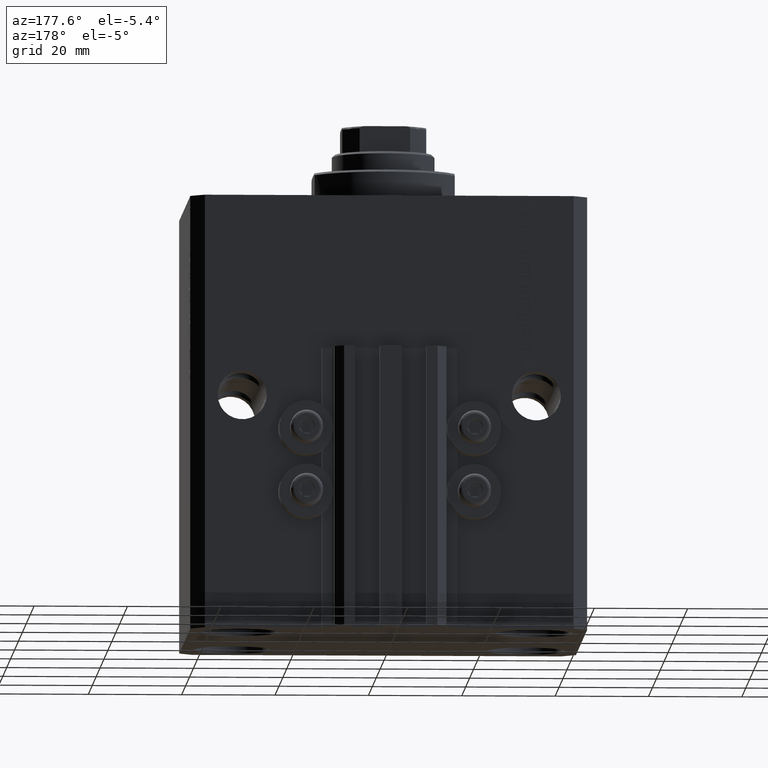
[diagram: clean part render]
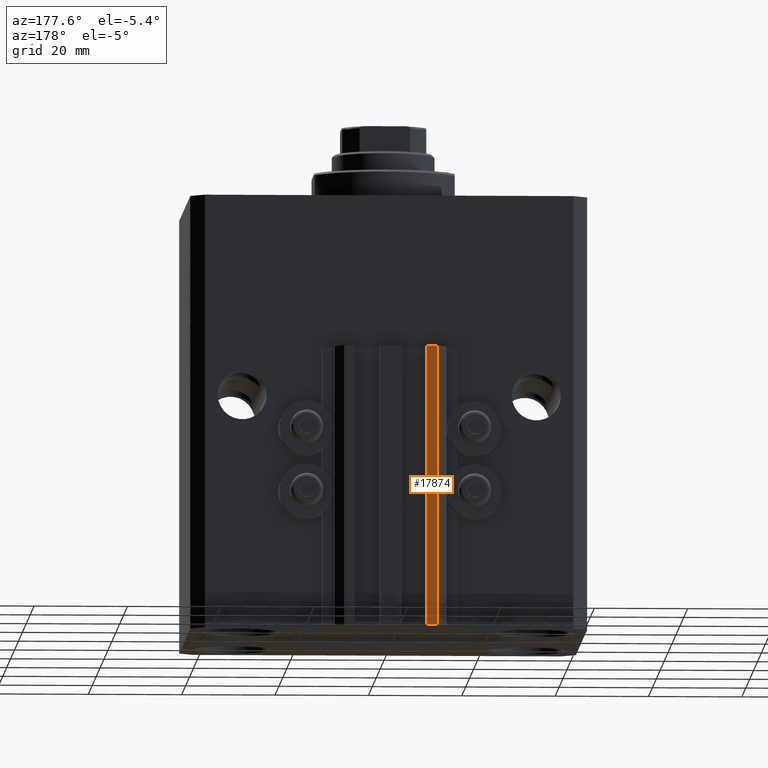
[diagram: same view with one face highlighted and labeled with its STEP entity id]
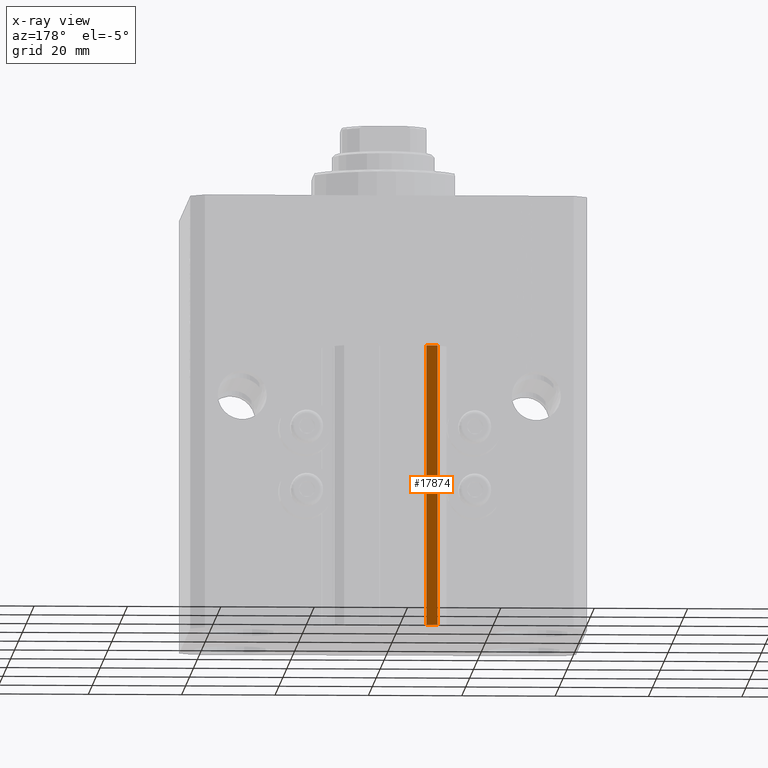
[diagram: x-ray of the same camera — body ghosted, the highlighted face saturated]
A machine part, auxiliary view. The second image highlights one B-rep face of the part: STEP entity #17874.
The next image is the same camera in x-ray: the body ghosted, the highlighted face saturated — about 0% of this face is hidden behind the body in this view.
In plain terms, the highlighted planar face has unit normal (0, 1, 0).
Its self-contained STEP definition (entity closure, byte-faithful):
#1281 = DIRECTION ( 'NONE',  ( -1.000000000000000000, 0.000000000000000000, 0.000000000000000000 ) ) ;
#1428 = EDGE_LOOP ( 'NONE', ( #29998, #13426, #5988, #23992 ) ) ;
#3418 = EDGE_CURVE ( 'NONE', #13104, #5903, #15937, .T. ) ;
#3806 = LINE ( 'NONE', #29783, #8318 ) ;
#3830 = EDGE_CURVE ( 'NONE', #13104, #14422, #3806, .T. ) ;
#4759 = LINE ( 'NONE', #19458, #20276 ) ;
#5903 = VERTEX_POINT ( 'NONE', #19776 ) ;
#5988 = ORIENTED_EDGE ( 'NONE', *, *, #3418, .T. ) ;
#8318 = VECTOR ( 'NONE', #18491, 1000.000000000000000 ) ;
#9155 = EDGE_CURVE ( 'NONE', #14422, #33744, #30393, .T. ) ;
#10253 = CARTESIAN_POINT ( 'NONE',  ( -7.650000000000002132, 39.49999999999999289, -93.00000000000000000 ) ) ;
#11507 = DIRECTION ( 'NONE',  ( 0.000000000000000000, 0.000000000000000000, 1.000000000000000000 ) ) ;
#12169 = VECTOR ( 'NONE', #34454, 1000.000000000000000 ) ;
#12463 = EDGE_CURVE ( 'NONE', #5903, #33744, #4759, .T. ) ;
#13104 = VERTEX_POINT ( 'NONE', #29718 ) ;
#13426 = ORIENTED_EDGE ( 'NONE', *, *, #3830, .F. ) ;
#13871 = DIRECTION ( 'NONE',  ( 0.000000000000000000, 0.000000000000000000, 1.000000000000000000 ) ) ;
#14422 = VERTEX_POINT ( 'NONE', #28430 ) ;
#15937 = LINE ( 'NONE', #45284, #12169 ) ;
#17874 = ADVANCED_FACE ( 'NONE', ( #35277 ), #46826, .T. ) ;
#18491 = DIRECTION ( 'NONE',  ( 0.000000000000000000, 0.000000000000000000, 1.000000000000000000 ) ) ;
#19458 = CARTESIAN_POINT ( 'NONE',  ( -10.00000000000000000, 39.49999999999999289, -93.00000000000000000 ) ) ;
#19776 = CARTESIAN_POINT ( 'NONE',  ( -10.00000000000000000, 39.49999999999999289, -93.00000000000000000 ) ) ;
#20276 = VECTOR ( 'NONE', #11507, 1000.000000000000000 ) ;
#23992 = ORIENTED_EDGE ( 'NONE', *, *, #12463, .T. ) ;
#28430 = CARTESIAN_POINT ( 'NONE',  ( -7.650000000000002132, 39.49999999999999289, -33.00000000000000000 ) ) ;
#29687 = CARTESIAN_POINT ( 'NONE',  ( -7.650000000000002132, 39.49999999999999289, -33.00000000000000000 ) ) ;
#29718 = CARTESIAN_POINT ( 'NONE',  ( -7.650000000000002132, 39.49999999999999289, -93.00000000000000000 ) ) ;
#29783 = CARTESIAN_POINT ( 'NONE',  ( -7.650000000000002132, 39.49999999999999289, -93.00000000000000000 ) ) ;
#29998 = ORIENTED_EDGE ( 'NONE', *, *, #9155, .F. ) ;
#30393 = LINE ( 'NONE', #29687, #33856 ) ;
#32642 = DIRECTION ( 'NONE',  ( 0.000000000000000000, 1.000000000000000000, -0.000000000000000000 ) ) ;
#33744 = VERTEX_POINT ( 'NONE', #39331 ) ;
#33856 = VECTOR ( 'NONE', #1281, 1000.000000000000000 ) ;
#34454 = DIRECTION ( 'NONE',  ( -1.000000000000000000, 0.000000000000000000, 0.000000000000000000 ) ) ;
#35277 = FACE_OUTER_BOUND ( 'NONE', #1428, .T. ) ;
#35403 = AXIS2_PLACEMENT_3D ( 'NONE', #10253, #32642, #13871 ) ;
#39331 = CARTESIAN_POINT ( 'NONE',  ( -10.00000000000000000, 39.49999999999999289, -33.00000000000000000 ) ) ;
#45284 = CARTESIAN_POINT ( 'NONE',  ( -7.650000000000002132, 39.49999999999999289, -93.00000000000000000 ) ) ;
#46826 = PLANE ( 'NONE',  #35403 ) ;